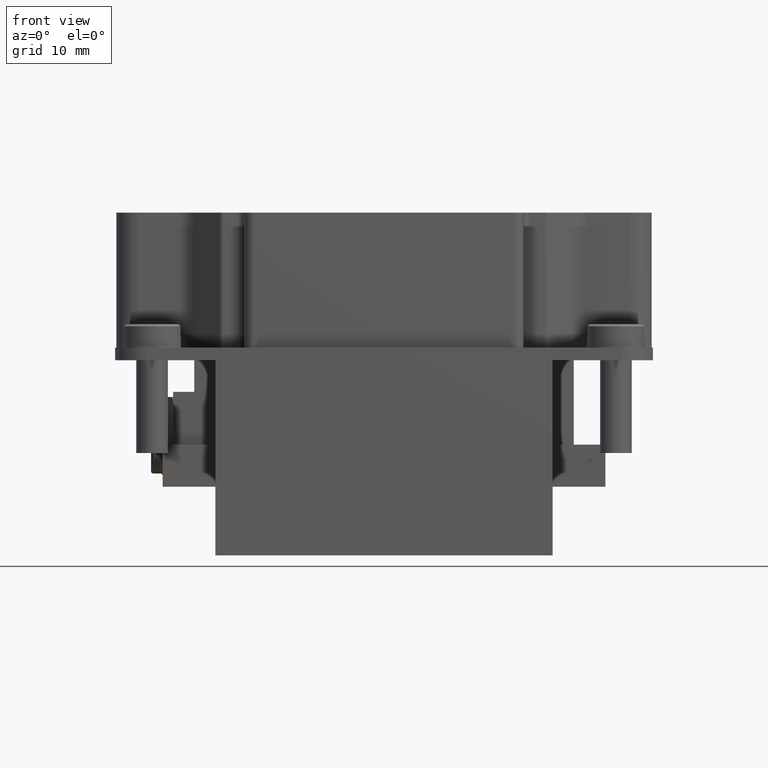
[diagram: clean part render]
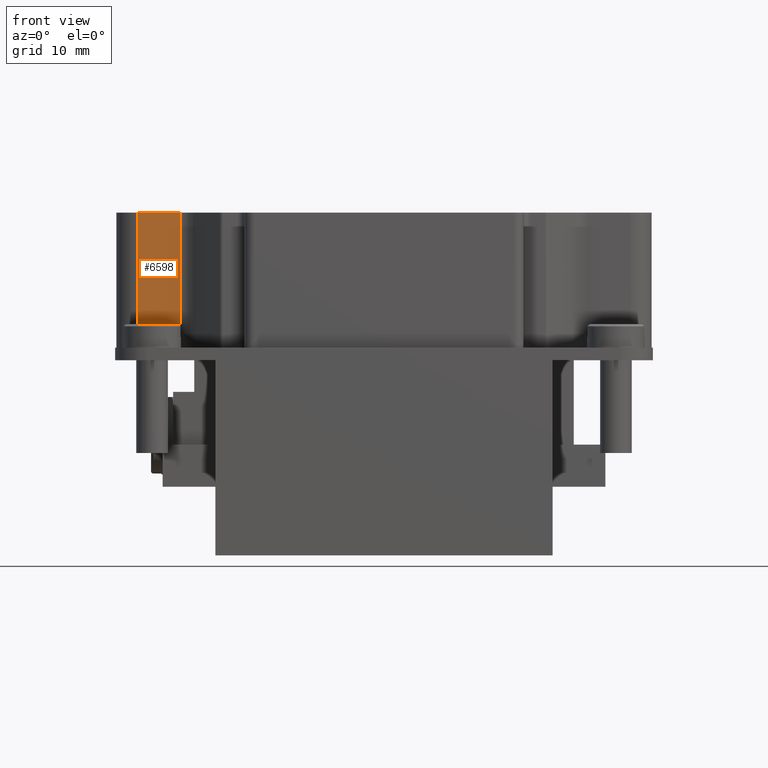
[diagram: same view with one face highlighted and labeled with its STEP entity id]
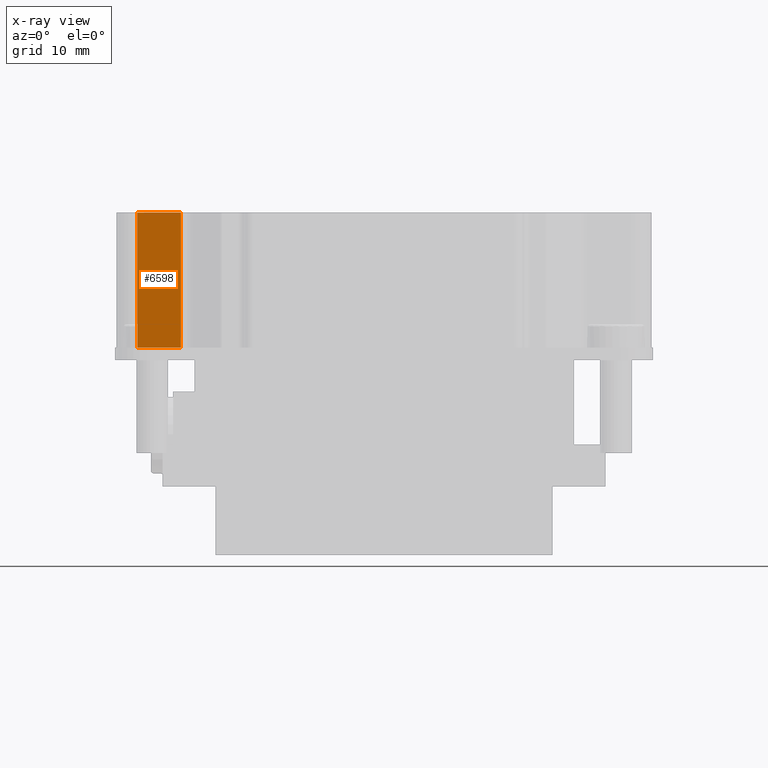
[diagram: x-ray of the same camera — body ghosted, the highlighted face saturated]
A machine part, front view. The second image highlights one B-rep face of the part: STEP entity #6598.
The next image is the same camera in x-ray: the body ghosted, the highlighted face saturated — about 0% of this face is hidden behind the body in this view.
In plain terms, the highlighted planar face has unit normal (0, -1, 0).
Its self-contained STEP definition (entity closure, byte-faithful):
#1291 = DIRECTION ( 'NONE',  ( -1.000000000000000000, -0.000000000000000000, -0.000000000000000000 ) ) ;
#1478 = VECTOR ( 'NONE', #20264, 39.37007874015748143 ) ;
#1946 = EDGE_CURVE ( 'NONE', #12249, #7552, #15921, .T. ) ;
#4616 = ORIENTED_EDGE ( 'NONE', *, *, #1946, .T. ) ;
#5356 = LINE ( 'NONE', #20063, #13422 ) ;
#5520 = FACE_OUTER_BOUND ( 'NONE', #5532, .T. ) ;
#5532 = EDGE_LOOP ( 'NONE', ( #4616, #18412, #15448, #15394 ) ) ;
#5677 = CARTESIAN_POINT ( 'NONE',  ( -0.9205570554001576422, -0.3496909136678733043, -0.5511811023720866176 ) ) ;
#5764 = DIRECTION ( 'NONE',  ( -0.000000000000000000, 0.000000000000000000, 1.000000000000000000 ) ) ;
#5835 = EDGE_CURVE ( 'NONE', #7552, #20296, #19981, .T. ) ;
#5994 = DIRECTION ( 'NONE',  ( 0.000000000000000000, -0.000000000000000000, -1.000000000000000000 ) ) ;
#6176 = CARTESIAN_POINT ( 'NONE',  ( -0.7587134282353582559, -0.3496909136678731933, -0.5039370078740239567 ) ) ;
#6598 = ADVANCED_FACE ( 'NONE', ( #5520 ), #8570, .T. ) ;
#7083 = EDGE_CURVE ( 'NONE', #16636, #12249, #5356, .T. ) ;
#7552 = VERTEX_POINT ( 'NONE', #13677 ) ;
#7989 = CARTESIAN_POINT ( 'NONE',  ( -0.9205570554001576422, -0.3496909136678733043, -9.882323524680789322E-12 ) ) ;
#8570 = PLANE ( 'NONE',  #18790 ) ;
#8617 = CARTESIAN_POINT ( 'NONE',  ( 0.8858267716535432879, -0.3496909136678731933, -0.5039370078740240677 ) ) ;
#8701 = VECTOR ( 'NONE', #1291, 39.37007874015748143 ) ;
#8995 = LINE ( 'NONE', #8617, #1478 ) ;
#11895 = DIRECTION ( 'NONE',  ( 0.000000000000000000, -1.000000000000000000, 0.000000000000000000 ) ) ;
#12249 = VERTEX_POINT ( 'NONE', #14026 ) ;
#13422 = VECTOR ( 'NONE', #5764, 39.37007874015748143 ) ;
#13525 = DIRECTION ( 'NONE',  ( 0.000000000000000000, -0.000000000000000000, -1.000000000000000000 ) ) ;
#13677 = CARTESIAN_POINT ( 'NONE',  ( -0.9205570554001576422, -0.3496909136678733043, -9.882323524680789322E-12 ) ) ;
#14026 = CARTESIAN_POINT ( 'NONE',  ( -0.7587134282353583670, -0.3496909136678733043, -9.882323524680789322E-12 ) ) ;
#14452 = VECTOR ( 'NONE', #13525, 39.37007874015748143 ) ;
#15394 = ORIENTED_EDGE ( 'NONE', *, *, #7083, .T. ) ;
#15448 = ORIENTED_EDGE ( 'NONE', *, *, #16418, .T. ) ;
#15921 = LINE ( 'NONE', #7989, #8701 ) ;
#16366 = CARTESIAN_POINT ( 'NONE',  ( -0.9205570554001577532, -0.3496909136678731933, -0.5039370078740219583 ) ) ;
#16418 = EDGE_CURVE ( 'NONE', #20296, #16636, #8995, .T. ) ;
#16636 = VERTEX_POINT ( 'NONE', #6176 ) ;
#18412 = ORIENTED_EDGE ( 'NONE', *, *, #5835, .T. ) ;
#18790 = AXIS2_PLACEMENT_3D ( 'NONE', #19718, #11895, #5994 ) ;
#19718 = CARTESIAN_POINT ( 'NONE',  ( -0.9205570554001576422, -0.3496909136678733043, -0.5511811023720866176 ) ) ;
#19981 = LINE ( 'NONE', #5677, #14452 ) ;
#20063 = CARTESIAN_POINT ( 'NONE',  ( -0.7587134282353583670, -0.3496909136678733043, -0.5511811023720866176 ) ) ;
#20264 = DIRECTION ( 'NONE',  ( 1.000000000000000000, -0.000000000000000000, 0.000000000000000000 ) ) ;
#20296 = VERTEX_POINT ( 'NONE', #16366 ) ;